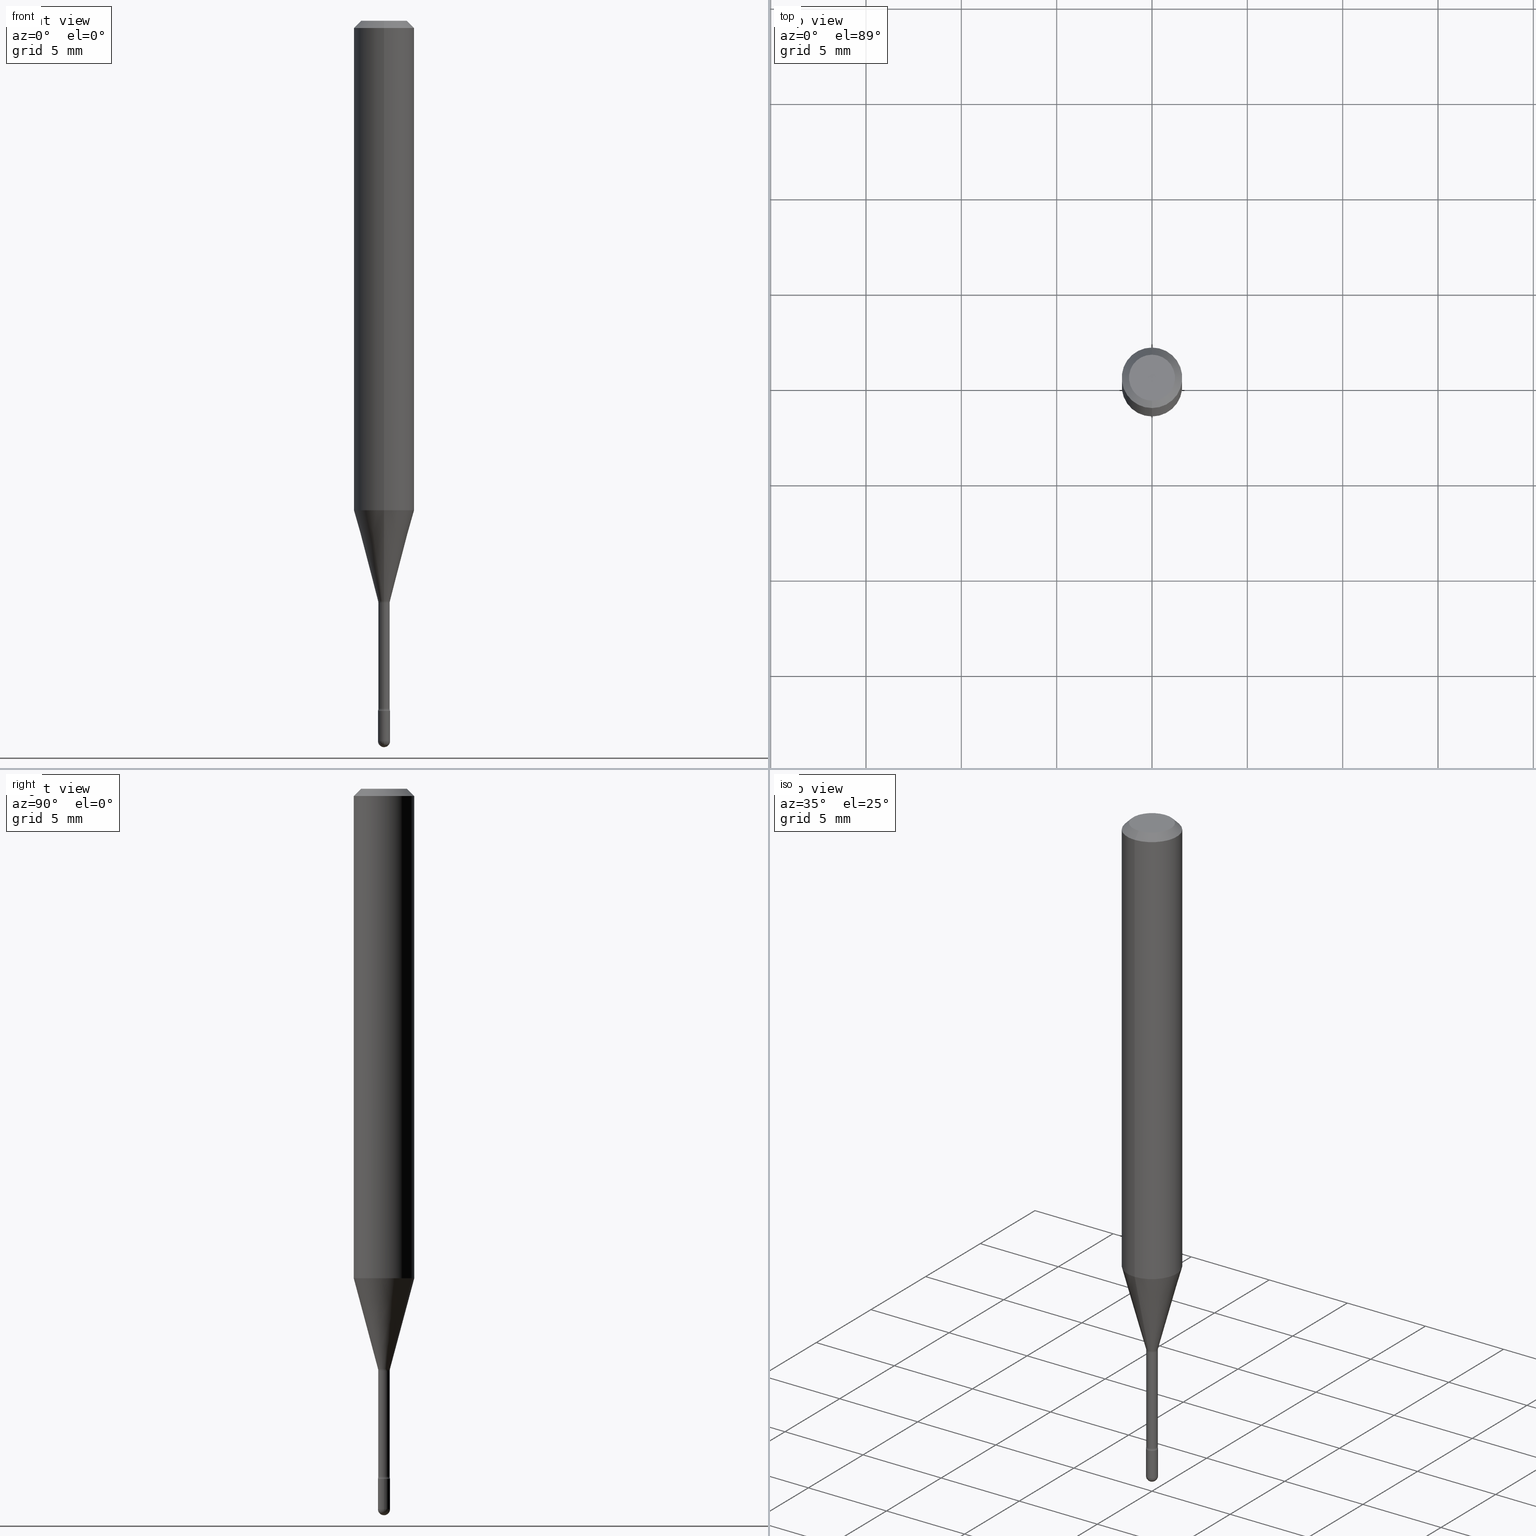
[diagram: canonical four-view strip — front | top / right | iso, engineering-drawing reading convention]
A machine part, canonical four-view strip (front | top / right | iso — engineering-drawing reading convention). The complete STEP part file that produces these views, byte-faithful:
ISO-10303-21;
HEADER;
FILE_DESCRIPTION (( 'STEP AP203' ),
    '1' );
FILE_NAME ('09790.STEP',
    '2024-04-10T01:21:23',
    ( '' ),
    ( '' ),
    'SwSTEP 2.0',
    'SolidWorks 2023',
    '' );
FILE_SCHEMA (( 'CONFIG_CONTROL_DESIGN' ));
ENDSEC;

DATA;
#1 = EDGE_CURVE ( 'NONE', #280, #69, #495, .T. ) ;
#2 = ORIENTED_EDGE ( 'NONE', *, *, #468, .T. ) ;
#3 = DIRECTION ( 'NONE',  ( -6.982962677686265133E-15, -1.000000000000000000, 0.000000000000000000 ) ) ;
#4 = ORIENTED_EDGE ( 'NONE', *, *, #428, .F. ) ;
#5 = DIRECTION ( 'NONE',  ( -1.000000000000000000, 6.982962677686265922E-15, -4.883557194083112340E-29 ) ) ;
#6 = ORIENTED_EDGE ( 'NONE', *, *, #432, .F. ) ;
#7 = DIRECTION ( 'NONE',  ( 1.000000000000000000, -6.982962677686294321E-15, 0.000000000000000000 ) ) ;
#8 = EDGE_LOOP ( 'NONE', ( #484, #2, #321, #147 ) ) ;
#9 = AXIS2_PLACEMENT_3D ( 'NONE', #17, #540, #430 ) ;
#10 = LINE ( 'NONE', #266, #161 ) ;
#11 = EDGE_CURVE ( 'NONE', #352, #272, #504, .T. ) ;
#12 = ORIENTED_EDGE ( 'NONE', *, *, #444, .F. ) ;
#13 = DIRECTION ( 'NONE',  ( -2.445561478799539239E-29, 3.491348626384723119E-15, 1.000000000000000000 ) ) ;
#14 = PERSON ( 'UNSPECIFIED', 'UNSPECIFIED', 'UNSPECIFIED', ('UNSPECIFIED'), ('UNSPECIFIED'), ('UNSPECIFIED') ) ;
#15 = ORIENTED_EDGE ( 'NONE', *, *, #27, .F. ) ;
#16 = CARTESIAN_POINT ( 'NONE',  ( 2.930008870409523343E-29, -4.182958610396833212E-15, -1.198092501787273223 ) ) ;
#17 = CARTESIAN_POINT ( 'NONE',  ( 2.939503238709759037E-29, -4.196513023160846013E-15, -1.201974787463810701 ) ) ;
#18 = AXIS2_PLACEMENT_3D ( 'NONE', #377, #548, #156 ) ;
#19 = ORIENTED_EDGE ( 'NONE', *, *, #263, .T. ) ;
#20 =( CONVERSION_BASED_UNIT ( 'INCH', #155 ) LENGTH_UNIT ( ) NAMED_UNIT ( #267 ) );
#21 = APPLICATION_PROTOCOL_DEFINITION ( 'international standard', 'config_control_design', 1994, #36 ) ;
#22 = EDGE_LOOP ( 'NONE', ( #184, #222, #389, #48, #286 ) ) ;
#23 = CIRCLE ( 'NONE', #388, 0.06250000000000000000 ) ;
#24 = CARTESIAN_POINT ( 'NONE',  ( 4.364351673553919652E-16, 0.06249999999999995143, -0.01500000000000030129 ) ) ;
#25 = PERSON_AND_ORGANIZATION ( #14, #403 ) ;
#26 = DIRECTION ( 'NONE',  ( -6.982962677686265922E-15, -1.000000000000000000, 4.370956789862821150E-15 ) ) ;
#27 = EDGE_CURVE ( 'NONE', #521, #450, #217, .T. ) ;
#28 = PERSON_AND_ORGANIZATION_ROLE ( 'creator' ) ;
#29 = CARTESIAN_POINT ( 'NONE',  ( 2.939391848563758953E-29, -4.196672540189851950E-15, -1.201974787463810923 ) ) ;
#30 = PERSON_AND_ORGANIZATION_ROLE ( 'classification_officer' ) ;
#31 = CARTESIAN_POINT ( 'NONE',  ( 3.473470712384296242E-29, -4.958819193710618417E-15, -1.420316251501201332 ) ) ;
#32 = AXIS2_PLACEMENT_3D ( 'NONE', #148, #126, #166 ) ;
#33 = PERSON_AND_ORGANIZATION ( #14, #403 ) ;
#34 = CC_DESIGN_PERSON_AND_ORGANIZATION_ASSIGNMENT ( #463, #111, ( #212 ) ) ;
#35 = FACE_OUTER_BOUND ( 'NONE', #501, .T. ) ;
#36 = APPLICATION_CONTEXT ( 'configuration controlled 3d designs of mechanical parts and assemblies' ) ;
#37 = FACE_OUTER_BOUND ( 'NONE', #529, .T. ) ;
#38 = FACE_OUTER_BOUND ( 'NONE', #178, .T. ) ;
#39 = CYLINDRICAL_SURFACE ( 'NONE', #113, 0.06250000000000000000 ) ;
#40 = ADVANCED_FACE ( 'NONE', ( #330 ), #425, .F. ) ;
#41 = ADVANCED_FACE ( 'NONE', ( #195 ), #374, .T. ) ;
#42 = AXIS2_PLACEMENT_3D ( 'NONE', #550, #157, #73 ) ;
#43 = CLOSED_SHELL ( 'NONE', ( #498, #305, #257, #201, #186, #243, #249, #472, #167, #78, #306, #40, #41, #282 ) ) ;
#44 = CIRCLE ( 'NONE', #42, 0.01500000000000002720 ) ;
#45 = ORIENTED_EDGE ( 'NONE', *, *, #428, .T. ) ;
#46 = EDGE_CURVE ( 'NONE', #272, #224, #255, .T. ) ;
#47 = CARTESIAN_POINT ( 'NONE',  ( 3.484925107289344340E-29, -4.975171792598231342E-15, -1.425000000000000266 ) ) ;
#48 = ORIENTED_EDGE ( 'NONE', *, *, #517, .F. ) ;
#49 = FACE_OUTER_BOUND ( 'NONE', #265, .T. ) ;
#50 = ORIENTED_EDGE ( 'NONE', *, *, #11, .T. ) ;
#51 = DATE_TIME_ROLE ( 'classification_date' ) ;
#52 = EDGE_CURVE ( 'NONE', #224, #272, #218, .T. ) ;
#53 = ORIENTED_EDGE ( 'NONE', *, *, #95, .T. ) ;
#54 = CARTESIAN_POINT ( 'NONE',  ( 2.656048273965141059E-16, 0.01226111260565979771, -1.198092501787273223 ) ) ;
#55 = DIRECTION ( 'NONE',  ( 2.445561478799539239E-29, -3.491348626384722725E-15, -1.000000000000000000 ) ) ;
#56 = ORIENTED_EDGE ( 'NONE', *, *, #234, .T. ) ;
#57 = CIRCLE ( 'NONE', #395, 0.01250000000000000243 ) ;
#58 = DIRECTION ( 'NONE',  ( -6.982962677686265922E-15, -1.000000000000000000, 0.000000000000000000 ) ) ;
#59 = DIRECTION ( 'NONE',  ( -2.445561478799539519E-29, 3.491348626384722725E-15, 1.000000000000000000 ) ) ;
#60 = ORIENTED_EDGE ( 'NONE', *, *, #338, .F. ) ;
#61 = FACE_OUTER_BOUND ( 'NONE', #123, .T. ) ;
#62 = DIRECTION ( 'NONE',  ( -2.445561478799539239E-29, 3.491348626384723119E-15, 1.000000000000000000 ) ) ;
#63 = CARTESIAN_POINT ( 'NONE',  ( 2.024226748635264408E-45, -2.888572993736515430E-31, -8.275333591332038235E-17 ) ) ;
#64 = ADVANCED_FACE ( 'NONE', ( #38 ), #385, .T. ) ;
#65 = CARTESIAN_POINT ( 'NONE',  ( 1.900701818158561564E-16, 0.02674999999999580144, -1.201974787463811145 ) ) ;
#66 = DIRECTION ( 'NONE',  ( 6.982962677686266711E-15, 1.000000000000000000, 0.000000000000000000 ) ) ;
#67 = CIRCLE ( 'NONE', #369, 0.01175000000000000350 ) ;
#68 = CC_DESIGN_PERSON_AND_ORGANIZATION_ASSIGNMENT ( #33, #28, ( #544 ) ) ;
#69 = VERTEX_POINT ( 'NONE', #477 ) ;
#70 = ORIENTED_EDGE ( 'NONE', *, *, #52, .F. ) ;
#71 = DATE_AND_TIME ( #470, #227 ) ;
#72 = DIRECTION ( 'NONE',  ( -6.982962677686265133E-15, -1.000000000000000000, 3.491348626384723513E-15 ) ) ;
#73 = DIRECTION ( 'NONE',  ( 7.105427357601001859E-15, 1.000000000000000000, 0.000000000000000000 ) ) ;
#74 = CC_DESIGN_APPROVAL ( #79, ( #407 ) ) ;
#75 = AXIS2_PLACEMENT_3D ( 'NONE', #346, #55, #547 ) ;
#76 = COORDINATED_UNIVERSAL_TIME_OFFSET ( 5, 0, .BEHIND. ) ;
#77 = LINE ( 'NONE', #214, #467 ) ;
#78 = ADVANCED_FACE ( 'NONE', ( #108 ), #164, .F. ) ;
#79 = APPROVAL ( #169, 'UNSPECIFIED' ) ;
#80 = APPROVAL_ROLE ( '' ) ;
#81 = CARTESIAN_POINT ( 'NONE',  ( -4.364351673553912750E-16, -0.06250000000000005551, -0.01499999999999986587 ) ) ;
#82 = AXIS2_PLACEMENT_3D ( 'NONE', #333, #541, #202 ) ;
#83 = AXIS2_PLACEMENT_3D ( 'NONE', #348, #162, #558 ) ;
#84 = APPROVAL_DATE_TIME ( #485, #79 ) ;
#85 = ORIENTED_EDGE ( 'NONE', *, *, #349, .T. ) ;
#86 = DIRECTION ( 'NONE',  ( -6.982962677686265922E-15, -1.000000000000000000, 3.491348626384722725E-15 ) ) ;
#87 = EDGE_LOOP ( 'NONE', ( #92, #219, #452, #268 ) ) ;
#88 = AXIS2_PLACEMENT_3D ( 'NONE', #446, #5, #356 ) ;
#89 = CC_DESIGN_APPROVAL ( #318, ( #544 ) ) ;
#90 = VERTEX_POINT ( 'NONE', #372 ) ;
#91 = ORIENTED_EDGE ( 'NONE', *, *, #401, .T. ) ;
#92 = ORIENTED_EDGE ( 'NONE', *, *, #401, .F. ) ;
#93 = DIRECTION ( 'NONE',  ( -2.445561478799539239E-29, 3.491348626384723119E-15, 1.000000000000000000 ) ) ;
#94 = EDGE_LOOP ( 'NONE', ( #142, #436 ) ) ;
#95 = EDGE_CURVE ( 'NONE', #312, #90, #23, .T. ) ;
#96 = ORIENTED_EDGE ( 'NONE', *, *, #191, .F. ) ;
#97 = CARTESIAN_POINT ( 'NONE',  ( -4.364351673553670668E-16, -0.06250000000000353884, -1.010598421515879641 ) ) ;
#98 = ORIENTED_EDGE ( 'NONE', *, *, #349, .F. ) ;
#99 = AXIS2_PLACEMENT_3D ( 'NONE', #490, #176, #138 ) ;
#100 = CARTESIAN_POINT ( 'NONE',  ( 3.637634849200391024E-29, -5.193578491529179010E-15, -1.487500000000000266 ) ) ;
#101 = DIRECTION ( 'NONE',  ( 1.000000000000000000, -6.982962677686292743E-15, 0.000000000000000000 ) ) ;
#102 = VERTEX_POINT ( 'NONE', #204 ) ;
#103 = DIRECTION ( 'NONE',  ( 1.000000000000000000, -6.982962677686265922E-15, 4.883557194083112340E-29 ) ) ;
#104 = CIRCLE ( 'NONE', #82, 0.01250000000000000069 ) ;
#105 = ORIENTED_EDGE ( 'NONE', *, *, #517, .T. ) ;
#106 = TOROIDAL_SURFACE ( 'NONE', #545, 0.02675000000000002723, 0.01500000000000002547 ) ;
#107 = EDGE_CURVE ( 'NONE', #260, #197, #143, .T. ) ;
#108 = FACE_OUTER_BOUND ( 'NONE', #94, .T. ) ;
#109 = DATE_AND_TIME ( #287, #254 ) ;
#110 = CARTESIAN_POINT ( 'NONE',  ( -1.169113584055446105E-44, 1.669184350826100908E-30, 4.780733988912460139E-16 ) ) ;
#111 = PERSON_AND_ORGANIZATION_ROLE ( 'creator' ) ;
#112 = VECTOR ( 'NONE', #59, 39.37007874015748143 ) ;
#113 = AXIS2_PLACEMENT_3D ( 'NONE', #213, #344, #514 ) ;
#114 = APPROVAL_PERSON_ORGANIZATION ( #248, #318, #80 ) ;
#115 = MECHANICAL_CONTEXT ( 'NONE', #36, 'mechanical' ) ;
#116 = DIRECTION ( 'NONE',  ( -2.445468806185136597E-29, 3.491481338843145583E-15, 1.000000000000000000 ) ) ;
#117 = CARTESIAN_POINT ( 'NONE',  ( 3.668342218199329335E-31, -5.237022939577113570E-17, -0.01500000000000008271 ) ) ;
#118 = APPROVAL_ROLE ( '' ) ;
#119 = AXIS2_PLACEMENT_3D ( 'NONE', #506, #288, #72 ) ;
#120 = CARTESIAN_POINT ( 'NONE',  ( 8.615330671094703254E-17, 0.01174999999999504566, -1.420316251501201332 ) ) ;
#121 = LINE ( 'NONE', #165, #295 ) ;
#122 = EDGE_CURVE ( 'NONE', #488, #224, #77, .T. ) ;
#123 = EDGE_LOOP ( 'NONE', ( #525, #226, #278, #270 ) ) ;
#124 = DIRECTION ( 'NONE',  ( -2.445561478799539239E-29, 3.491348626384723119E-15, 1.000000000000000000 ) ) ;
#125 = PERSON_AND_ORGANIZATION ( #14, #403 ) ;
#126 = DIRECTION ( 'NONE',  ( -1.000000000000000000, 6.982962677686265922E-15, -4.883557194083112340E-29 ) ) ;
#127 = DIRECTION ( 'NONE',  ( -2.445561478799539239E-29, 3.491348626384723119E-15, 1.000000000000000000 ) ) ;
#128 = EDGE_LOOP ( 'NONE', ( #357, #480, #364, #390 ) ) ;
#129 = AXIS2_PLACEMENT_3D ( 'NONE', #329, #440, #236 ) ;
#130 = COORDINATED_UNIVERSAL_TIME_OFFSET ( 5, 0, .BEHIND. ) ;
#131 = CONICAL_SURFACE ( 'NONE', #405, 0.01226111260566397840, 0.2617993877991499629 ) ;
#132 = EDGE_LOOP ( 'NONE', ( #355, #497 ) ) ;
#133 = FACE_OUTER_BOUND ( 'NONE', #87, .T. ) ;
#134 = VERTEX_POINT ( 'NONE', #253 ) ;
#135 = DIRECTION ( 'NONE',  ( -2.445561478799539239E-29, 3.491348626384723119E-15, 1.000000000000000000 ) ) ;
#136 = DIRECTION ( 'NONE',  ( -2.445468806185136597E-29, 3.491481338843145583E-15, 1.000000000000000000 ) ) ;
#137 = ORIENTED_EDGE ( 'NONE', *, *, #107, .F. ) ;
#138 = DIRECTION ( 'NONE',  ( -6.982962677686265922E-15, -1.000000000000000000, 3.483106191921935554E-15 ) ) ;
#139 = AXIS2_PLACEMENT_3D ( 'NONE', #140, #136, #7 ) ;
#140 = CARTESIAN_POINT ( 'NONE',  ( 3.484793048813820547E-29, -4.975360907851483175E-15, -1.425000000000000266 ) ) ;
#141 = EDGE_CURVE ( 'NONE', #488, #352, #67, .T. ) ;
#142 = ORIENTED_EDGE ( 'NONE', *, *, #522, .T. ) ;
#143 = CIRCLE ( 'NONE', #460, 0.06250000000000000000 ) ;
#144 = EDGE_LOOP ( 'NONE', ( #486, #358, #519, #98 ) ) ;
#145 = CARTESIAN_POINT ( 'NONE',  ( 0.01250000000000000243, -8.728703347107835853E-17, 6.095220969744921493E-31 ) ) ;
#146 = CARTESIAN_POINT ( 'NONE',  ( 0.01250000000000000243, -5.171756733161409821E-15, -1.487499999999999822 ) ) ;
#147 = ORIENTED_EDGE ( 'NONE', *, *, #46, .F. ) ;
#148 = CARTESIAN_POINT ( 'NONE',  ( -1.867942516280782268E-16, -0.02675000000000419403, -1.201974787463810701 ) ) ;
#149 = DIRECTION ( 'NONE',  ( 6.982962677686265922E-15, 1.000000000000000000, 0.000000000000000000 ) ) ;
#150 = ADVANCED_FACE ( 'NONE', ( #383 ), #303, .T. ) ;
#151 = AXIS2_PLACEMENT_3D ( 'NONE', #245, #203, #508 ) ;
#152 = EDGE_LOOP ( 'NONE', ( #396, #50, #70, #537 ) ) ;
#153 = VECTOR ( 'NONE', #309, 39.37007874015748143 ) ;
#154 = CARTESIAN_POINT ( 'NONE',  ( 3.637634849200391024E-29, -5.193578491529179010E-15, -1.487500000000000266 ) ) ;
#155 = LENGTH_MEASURE_WITH_UNIT ( LENGTH_MEASURE( 0.02539999999999999897 ), #502 );
#156 = DIRECTION ( 'NONE',  ( -6.982962677686265922E-15, -1.000000000000000000, 0.000000000000000000 ) ) ;
#157 = DIRECTION ( 'NONE',  ( 1.000000000000000000, -7.105427357601001070E-15, 4.926313883283208026E-29 ) ) ;
#158 = CARTESIAN_POINT ( 'NONE',  ( 3.637634849200390463E-29, -5.193578491529179010E-15, -1.487499999999999822 ) ) ;
#159 = EDGE_CURVE ( 'NONE', #310, #102, #449, .T. ) ;
#160 = AXIS2_PLACEMENT_3D ( 'NONE', #100, #277, #66 ) ;
#161 = VECTOR ( 'NONE', #269, 39.37007874015748143 ) ;
#162 = DIRECTION ( 'NONE',  ( 2.445561478799539239E-29, -3.491348626384723119E-15, -1.000000000000000000 ) ) ;
#163 = LOCAL_TIME ( 21, 21, 23.00000000000000000, #130 ) ;
#164 = PLANE ( 'NONE',  #75 ) ;
#165 = CARTESIAN_POINT ( 'NONE',  ( -8.561889171223086706E-17, -0.01226111260566816255, -1.198092501787273223 ) ) ;
#166 = DIRECTION ( 'NONE',  ( -6.982962677686262766E-15, -1.000000000000000000, 0.000000000000000000 ) ) ;
#167 = ADVANCED_FACE ( 'NONE', ( #37 ), #538, .T. ) ;
#168 = AXIS2_PLACEMENT_3D ( 'NONE', #533, #135, #320 ) ;
#169 = APPROVAL_STATUS ( 'not_yet_approved' ) ;
#170 = ORIENTED_EDGE ( 'NONE', *, *, #560, .F. ) ;
#171 = SPHERICAL_SURFACE ( 'NONE', #193, 0.01249999999999996947 ) ;
#172 = DESIGN_CONTEXT ( 'detailed design', #534, 'design' ) ;
#173 = SHAPE_DEFINITION_REPRESENTATION ( #314, #500 ) ;
#174 = DIRECTION ( 'NONE',  ( -2.445561478799539239E-29, 3.491348626384723119E-15, 1.000000000000000000 ) ) ;
#175 = ORIENTED_EDGE ( 'NONE', *, *, #453, .T. ) ;
#176 = DIRECTION ( 'NONE',  ( -2.445561478799539239E-29, 3.491348626384723119E-15, 1.000000000000000000 ) ) ;
#177 = DIRECTION ( 'NONE',  ( -2.445561478799539239E-29, 3.491348626384723119E-15, 1.000000000000000000 ) ) ;
#178 = EDGE_LOOP ( 'NONE', ( #240, #445, #362, #105, #170 ) ) ;
#179 = EDGE_CURVE ( 'NONE', #102, #312, #121, .T. ) ;
#180 = CARTESIAN_POINT ( 'NONE',  ( 8.348877145184653122E-17, 0.01174999999999580547, -1.201974787463810701 ) ) ;
#181 = AXIS2_PLACEMENT_3D ( 'NONE', #232, #496, #101 ) ;
#182 = AXIS2_PLACEMENT_3D ( 'NONE', #154, #103, #149 ) ;
#183 = CARTESIAN_POINT ( 'NONE',  ( 4.440892098500625669E-16, 0.06250000000000000000, 2.598641097422008436E-16 ) ) ;
#184 = ORIENTED_EDGE ( 'NONE', *, *, #543, .T. ) ;
#185 = FACE_OUTER_BOUND ( 'NONE', #367, .T. ) ;
#186 = ADVANCED_FACE ( 'NONE', ( #35 ), #39, .T. ) ;
#187 = DIRECTION ( 'NONE',  ( -2.445561478799539239E-29, 3.491348626384723119E-15, 1.000000000000000000 ) ) ;
#188 = DIRECTION ( 'NONE',  ( -6.982962677686265922E-15, -1.000000000000000000, 0.000000000000000000 ) ) ;
#189 = CARTESIAN_POINT ( 'NONE',  ( -4.287811248607203282E-16, -0.06250000000000005551, -0.01499999999999986587 ) ) ;
#190 = AXIS2_PLACEMENT_3D ( 'NONE', #110, #466, #551 ) ;
#191 = EDGE_CURVE ( 'NONE', #69, #376, #57, .T. ) ;
#192 = MANIFOLD_SOLID_BREP ( 'Body-Move/Copy2[2]', #43 ) ;
#193 = AXIS2_PLACEMENT_3D ( 'NONE', #394, #273, #451 ) ;
#194 = FACE_OUTER_BOUND ( 'NONE', #22, .T. ) ;
#195 = FACE_OUTER_BOUND ( 'NONE', #8, .T. ) ;
#196 = CIRCLE ( 'NONE', #139, 0.01250000000000000069 ) ;
#197 = VERTEX_POINT ( 'NONE', #81 ) ;
#198 = CARTESIAN_POINT ( 'NONE',  ( 3.637634849200390463E-29, -5.193578491529179010E-15, -1.487499999999999822 ) ) ;
#199 = CARTESIAN_POINT ( 'NONE',  ( -3.773273898774340269E-16, -0.04749999999999999362, 8.308572383995396038E-17 ) ) ;
#200 = VERTEX_POINT ( 'NONE', #513 ) ;
#201 = ADVANCED_FACE ( 'NONE', ( #256 ), #518, .T. ) ;
#202 = DIRECTION ( 'NONE',  ( 1.000000000000000000, -6.982962677686294321E-15, 0.000000000000000000 ) ) ;
#203 = DIRECTION ( 'NONE',  ( 0.000000000000000000, 0.000000000000000000, 1.000000000000000000 ) ) ;
#204 = CARTESIAN_POINT ( 'NONE',  ( -8.561889171223086706E-17, -0.01226111260566816255, -1.198092501787273223 ) ) ;
#205 = DIRECTION ( 'NONE',  ( -2.445468806185136597E-29, 3.491481338843145583E-15, 1.000000000000000000 ) ) ;
#206 = ADVANCED_FACE ( 'NONE', ( #345 ), #171, .T. ) ;
#207 = PERSON_AND_ORGANIZATION ( #14, #403 ) ;
#208 = DIRECTION ( 'NONE',  ( -2.445561478799539239E-29, 3.491348626384723119E-15, 1.000000000000000000 ) ) ;
#209 = DIRECTION ( 'NONE',  ( -6.982962677686265922E-15, -1.000000000000000000, 0.000000000000000000 ) ) ;
#210 = CC_DESIGN_PERSON_AND_ORGANIZATION_ASSIGNMENT ( #422, #30, ( #407 ) ) ;
#211 = AXIS2_PLACEMENT_3D ( 'NONE', #238, #228, #323 ) ;
#212 = PRODUCT_DEFINITION ( 'UNKNOWN', '', #544, #172 ) ;
#213 = CARTESIAN_POINT ( 'NONE',  ( -1.169113584055446105E-44, 1.669184350826100908E-30, 4.780733988912460139E-16 ) ) ;
#214 = CARTESIAN_POINT ( 'NONE',  ( -8.204981146281365061E-17, -0.01175000000000000350, 5.190967452512665836E-16 ) ) ;
#215 = TOROIDAL_SURFACE ( 'NONE', #261, 0.02674999999999999947, 0.01499999999999998904 ) ;
#216 = CARTESIAN_POINT ( 'NONE',  ( 2.930008870409523343E-29, -4.182958610396833212E-15, -1.198092501787273223 ) ) ;
#217 = CIRCLE ( 'NONE', #182, 0.01249999999999996947 ) ;
#218 = CIRCLE ( 'NONE', #9, 0.01175000000000000350 ) ;
#219 = ORIENTED_EDGE ( 'NONE', *, *, #159, .T. ) ;
#220 = CYLINDRICAL_SURFACE ( 'NONE', #438, 0.01175000000000000350 ) ;
#221 = EDGE_CURVE ( 'NONE', #488, #315, #285, .T. ) ;
#222 = ORIENTED_EDGE ( 'NONE', *, *, #275, .T. ) ;
#223 = FACE_OUTER_BOUND ( 'NONE', #152, .T. ) ;
#224 = VERTEX_POINT ( 'NONE', #391 ) ;
#225 = LINE ( 'NONE', #189, #381 ) ;
#226 = ORIENTED_EDGE ( 'NONE', *, *, #553, .T. ) ;
#227 = LOCAL_TIME ( 21, 21, 23.00000000000000000, #76 ) ;
#228 = DIRECTION ( 'NONE',  ( -1.000000000000000000, 7.105427357601001070E-15, -4.926315508542082329E-29 ) ) ;
#229 = CONICAL_SURFACE ( 'NONE', #511, 0.01226111260566397840, 0.2617993877991499629 ) ;
#230 = ORIENTED_EDGE ( 'NONE', *, *, #338, .T. ) ;
#231 = DIRECTION ( 'NONE',  ( -6.982962677686265922E-15, -1.000000000000000000, 3.491348626384723119E-15 ) ) ;
#232 = CARTESIAN_POINT ( 'NONE',  ( 3.637634849200390463E-29, -5.193578491529179010E-15, -1.487499999999999822 ) ) ;
#233 = CARTESIAN_POINT ( 'NONE',  ( 8.728703347111317935E-17, 0.01249999999999502551, -1.425000000000000266 ) ) ;
#234 = EDGE_CURVE ( 'NONE', #90, #260, #523, .T. ) ;
#235 = DIRECTION ( 'NONE',  ( -2.445468806185136597E-29, 3.491481338843145583E-15, 1.000000000000000000 ) ) ;
#236 = DIRECTION ( 'NONE',  ( 1.000000000000000000, -6.982962677686267499E-15, 4.876176775795936353E-29 ) ) ;
#237 = CIRCLE ( 'NONE', #293, 0.04749999999999999362 ) ;
#238 = CARTESIAN_POINT ( 'NONE',  ( 3.637634849200391024E-29, -5.193578491529179010E-15, -1.487500000000000266 ) ) ;
#239 = AXIS2_PLACEMENT_3D ( 'NONE', #316, #307, #530 ) ;
#240 = ORIENTED_EDGE ( 'NONE', *, *, #275, .F. ) ;
#241 = LOCAL_TIME ( 21, 21, 23.00000000000000000, #311 ) ;
#242 = CARTESIAN_POINT ( 'NONE',  ( 8.728703347111462148E-17, 0.01249999999999479305, -1.487499999999999822 ) ) ;
#243 = ADVANCED_FACE ( 'NONE', ( #353 ), #229, .T. ) ;
#244 = ORIENTED_EDGE ( 'NONE', *, *, #515, .T. ) ;
#245 = CARTESIAN_POINT ( 'NONE',  ( 0.000000000000000000, 0.000000000000000000, 0.000000000000000000 ) ) ;
#246 = DIRECTION ( 'NONE',  ( -2.445561478799539239E-29, 3.491348626384723119E-15, 1.000000000000000000 ) ) ;
#247 =( NAMED_UNIT ( * ) SI_UNIT ( $, .STERADIAN. ) SOLID_ANGLE_UNIT ( ) );
#248 = PERSON_AND_ORGANIZATION ( #14, #403 ) ;
#249 = ADVANCED_FACE ( 'NONE', ( #133 ), #131, .T. ) ;
#250 = CARTESIAN_POINT ( 'NONE',  ( 0.01250000000000000069, -5.062647941322562298E-15, -1.425000000000000266 ) ) ;
#251 = APPLICATION_PROTOCOL_DEFINITION ( 'international standard', 'config_control_design', 1994, #534 ) ;
#252 = DATE_TIME_ROLE ( 'creation_date' ) ;
#253 = CARTESIAN_POINT ( 'NONE',  ( 3.840629472727447874E-16, 0.04749999999999999362, -2.485923956665947374E-16 ) ) ;
#254 = LOCAL_TIME ( 21, 21, 23.00000000000000000, #552 ) ;
#255 = CIRCLE ( 'NONE', #324, 0.01175000000000000350 ) ;
#256 = FACE_OUTER_BOUND ( 'NONE', #494, .T. ) ;
#257 = ADVANCED_FACE ( 'NONE', ( #61 ), #106, .F. ) ;
#258 = CC_DESIGN_DATE_AND_TIME_ASSIGNMENT ( #71, #252, ( #212 ) ) ;
#259 = DIRECTION ( 'NONE',  ( -2.445561478799539239E-29, 3.491348626384723119E-15, 1.000000000000000000 ) ) ;
#260 = VERTEX_POINT ( 'NONE', #313 ) ;
#261 = AXIS2_PLACEMENT_3D ( 'NONE', #29, #208, #379 ) ;
#262 = CARTESIAN_POINT ( 'NONE',  ( -8.728703347104359935E-17, -0.01250000000000499323, -1.425000000000000266 ) ) ;
#263 = EDGE_CURVE ( 'NONE', #197, #260, #347, .T. ) ;
#264 = LOCAL_TIME ( 21, 21, 23.00000000000000000, #337 ) ;
#265 = EDGE_LOOP ( 'NONE', ( #12, #441, #85, #532 ) ) ;
#266 = CARTESIAN_POINT ( 'NONE',  ( -0.01250000000000000243, 8.881784197001254049E-17, -6.148668862818633278E-31 ) ) ;
#267 = DIMENSIONAL_EXPONENTS ( 1.000000000000000000, 0.000000000000000000, 0.000000000000000000, 0.000000000000000000, 0.000000000000000000, 0.000000000000000000, 0.000000000000000000 ) ;
#268 = ORIENTED_EDGE ( 'NONE', *, *, #400, .F. ) ;
#269 = DIRECTION ( 'NONE',  ( -2.445468806185136877E-29, 3.491481338843145188E-15, 1.000000000000000000 ) ) ;
#270 = ORIENTED_EDGE ( 'NONE', *, *, #221, .F. ) ;
#271 = EDGE_CURVE ( 'NONE', #458, #134, #415, .T. ) ;
#272 = VERTEX_POINT ( 'NONE', #180 ) ;
#273 = DIRECTION ( 'NONE',  ( -1.000000000000000000, 6.982962677686266711E-15, -4.883557194083112901E-29 ) ) ;
#274 = ORIENTED_EDGE ( 'NONE', *, *, #234, .F. ) ;
#275 = EDGE_CURVE ( 'NONE', #280, #527, #10, .T. ) ;
#276 = PRODUCT_RELATED_PRODUCT_CATEGORY ( 'detail', '', ( #279 ) ) ;
#277 = DIRECTION ( 'NONE',  ( -1.000000000000000000, 6.982962677686266711E-15, -4.883557194083112901E-29 ) ) ;
#278 = ORIENTED_EDGE ( 'NONE', *, *, #535, .T. ) ;
#279 = PRODUCT ( '09790', '09790', '', ( #115 ) ) ;
#280 = VERTEX_POINT ( 'NONE', #397 ) ;
#281 = EDGE_LOOP ( 'NONE', ( #274, #443, #45, #137 ) ) ;
#282 = ADVANCED_FACE ( 'NONE', ( #49 ), #481, .F. ) ;
#283 = CC_DESIGN_PERSON_AND_ORGANIZATION_ASSIGNMENT ( #207, #297, ( #544 ) ) ;
#284 = AXIS2_PLACEMENT_3D ( 'NONE', #233, #487, #86 ) ;
#285 = CIRCLE ( 'NONE', #88, 0.01500000000000002720 ) ;
#286 = ORIENTED_EDGE ( 'NONE', *, *, #432, .T. ) ;
#287 = CALENDAR_DATE ( 2024, 9, 4 ) ;
#288 = DIRECTION ( 'NONE',  ( -2.445561478799539239E-29, 3.491348626384723119E-15, 1.000000000000000000 ) ) ;
#289 =( NAMED_UNIT ( * ) PLANE_ANGLE_UNIT ( ) SI_UNIT ( $, .RADIAN. ) );
#290 = APPROVAL_DATE_TIME ( #109, #474 ) ;
#291 = ORIENTED_EDGE ( 'NONE', *, *, #263, .F. ) ;
#292 = CARTESIAN_POINT ( 'NONE',  ( 2.471480570194855478E-29, -3.528351410786036759E-15, -1.010598421515879863 ) ) ;
#293 = AXIS2_PLACEMENT_3D ( 'NONE', #63, #259, #404 ) ;
#294 = DATE_AND_TIME ( #424, #264 ) ;
#295 = VECTOR ( 'NONE', #433, 39.37007874015748143 ) ;
#296 = CIRCLE ( 'NONE', #301, 0.01250000000000000069 ) ;
#297 = PERSON_AND_ORGANIZATION_ROLE ( 'design_supplier' ) ;
#298 = PERSON_AND_ORGANIZATION ( #14, #403 ) ;
#299 = DIRECTION ( 'NONE',  ( 1.000000000000000000, -6.982962677686292743E-15, 0.000000000000000000 ) ) ;
#300 = EDGE_CURVE ( 'NONE', #315, #200, #555, .T. ) ;
#301 = AXIS2_PLACEMENT_3D ( 'NONE', #351, #174, #354 ) ;
#302 = CLOSED_SHELL ( 'NONE', ( #509, #327, #150, #206, #64 ) ) ;
#303 = PLANE ( 'NONE',  #332 ) ;
#304 = EDGE_LOOP ( 'NONE', ( #542, #371 ) ) ;
#305 = ADVANCED_FACE ( 'NONE', ( #223 ), #220, .T. ) ;
#306 = ADVANCED_FACE ( 'NONE', ( #476 ), #526, .F. ) ;
#307 = DIRECTION ( 'NONE',  ( -2.445561478799539239E-29, 3.491348626384723119E-15, 1.000000000000000000 ) ) ;
#308 = CIRCLE ( 'NONE', #322, 0.06250000000000000000 ) ;
#309 = DIRECTION ( 'NONE',  ( -2.445561478799539519E-29, 3.491348626384722725E-15, 1.000000000000000000 ) ) ;
#310 = VERTEX_POINT ( 'NONE', #54 ) ;
#311 = COORDINATED_UNIVERSAL_TIME_OFFSET ( 5, 0, .BEHIND. ) ;
#312 = VERTEX_POINT ( 'NONE', #97 ) ;
#313 = CARTESIAN_POINT ( 'NONE',  ( 4.440892098500874653E-16, 0.06249999999999993755, -0.01500000000000030129 ) ) ;
#314 = PRODUCT_DEFINITION_SHAPE ( 'NONE', 'NONE',  #212 ) ;
#315 = VERTEX_POINT ( 'NONE', #262 ) ;
#316 = CARTESIAN_POINT ( 'NONE',  ( 2.939391848563758953E-29, -4.196672540189851950E-15, -1.201974787463810923 ) ) ;
#317 = LINE ( 'NONE', #491, #112 ) ;
#318 = APPROVAL ( #549, 'UNSPECIFIED' ) ;
#319 = EDGE_LOOP ( 'NONE', ( #392, #464, #6, #96 ) ) ;
#320 = DIRECTION ( 'NONE',  ( -6.982962677686266711E-15, -1.000000000000000000, 3.491348626384723119E-15 ) ) ;
#321 = ORIENTED_EDGE ( 'NONE', *, *, #122, .T. ) ;
#322 = AXIS2_PLACEMENT_3D ( 'NONE', #499, #187, #528 ) ;
#323 = DIRECTION ( 'NONE',  ( -7.105427357601001070E-15, -1.000000000000000000, 0.000000000000000000 ) ) ;
#324 = AXIS2_PLACEMENT_3D ( 'NONE', #335, #62, #188 ) ;
#325 = ORIENTED_EDGE ( 'NONE', *, *, #95, .F. ) ;
#326 = DIRECTION ( 'NONE',  ( -4.851104656540964275E-15, -0.7071067811865500152, -0.7071067811865450192 ) ) ;
#327 = ADVANCED_FACE ( 'NONE', ( #185 ), #493, .T. ) ;
#328 = CARTESIAN_POINT ( 'NONE',  ( 3.668342218199329335E-31, -5.237022939577113570E-17, -0.01500000000000008271 ) ) ;
#329 = CARTESIAN_POINT ( 'NONE',  ( 0.000000000000000000, 0.000000000000000000, 0.000000000000000000 ) ) ;
#330 = FACE_OUTER_BOUND ( 'NONE', #128, .T. ) ;
#331 = CIRCLE ( 'NONE', #479, 0.01226111260566397840 ) ;
#332 = AXIS2_PLACEMENT_3D ( 'NONE', #380, #426, #561 ) ;
#333 = CARTESIAN_POINT ( 'NONE',  ( 3.484793048813820547E-29, -4.975360907851483175E-15, -1.425000000000000266 ) ) ;
#334 = PERSON_AND_ORGANIZATION_ROLE ( 'design_owner' ) ;
#335 = CARTESIAN_POINT ( 'NONE',  ( 2.939503238709759037E-29, -4.196513023160846013E-15, -1.201974787463810701 ) ) ;
#336 = FACE_OUTER_BOUND ( 'NONE', #281, .T. ) ;
#337 = COORDINATED_UNIVERSAL_TIME_OFFSET ( 5, 0, .BEHIND. ) ;
#338 = EDGE_CURVE ( 'NONE', #458, #197, #225, .T. ) ;
#339 = DIRECTION ( 'NONE',  ( 2.445561478799539239E-29, -3.491348626384723119E-15, -1.000000000000000000 ) ) ;
#340 = AXIS2_PLACEMENT_3D ( 'NONE', #563, #116, #434 ) ;
#341 = CIRCLE ( 'NONE', #512, 0.01499999999999998557 ) ;
#342 = DIRECTION ( 'NONE',  ( -2.445468806185136597E-29, 3.491481338843145583E-15, 1.000000000000000000 ) ) ;
#343 = CC_DESIGN_DATE_AND_TIME_ASSIGNMENT ( #350, #51, ( #407 ) ) ;
#344 = DIRECTION ( 'NONE',  ( -2.445561478799539239E-29, 3.491348626384723119E-15, 1.000000000000000000 ) ) ;
#345 = FACE_OUTER_BOUND ( 'NONE', #319, .T. ) ;
#346 = CARTESIAN_POINT ( 'NONE',  ( 3.316907271900976096E-16, 0.04749999999999999362, 3.182097173568844225E-17 ) ) ;
#347 = CIRCLE ( 'NONE', #99, 0.06250000000000000000 ) ;
#348 = CARTESIAN_POINT ( 'NONE',  ( 3.668342218199329335E-31, -5.237022939577113570E-17, -0.01500000000000008271 ) ) ;
#349 = EDGE_CURVE ( 'NONE', #102, #224, #503, .T. ) ;
#350 = DATE_AND_TIME ( #564, #163 ) ;
#351 = CARTESIAN_POINT ( 'NONE',  ( 3.484925107289344340E-29, -4.975171792598231342E-15, -1.425000000000000266 ) ) ;
#352 = VERTEX_POINT ( 'NONE', #120 ) ;
#353 = FACE_OUTER_BOUND ( 'NONE', #461, .T. ) ;
#354 = DIRECTION ( 'NONE',  ( -6.982962677686265133E-15, -1.000000000000000000, 0.000000000000000000 ) ) ;
#355 = ORIENTED_EDGE ( 'NONE', *, *, #300, .F. ) ;
#356 = DIRECTION ( 'NONE',  ( -6.982962677686265133E-15, -1.000000000000000000, 0.000000000000000000 ) ) ;
#357 = ORIENTED_EDGE ( 'NONE', *, *, #553, .F. ) ;
#358 = ORIENTED_EDGE ( 'NONE', *, *, #444, .T. ) ;
#359 = AXIS2_PLACEMENT_3D ( 'NONE', #198, #205, #299 ) ;
#360 = CARTESIAN_POINT ( 'NONE',  ( -1.169113584055446105E-44, 1.669184350826100908E-30, 4.780733988912460139E-16 ) ) ;
#361 = AXIS2_PLACEMENT_3D ( 'NONE', #398, #235, #455 ) ;
#362 = ORIENTED_EDGE ( 'NONE', *, *, #191, .T. ) ;
#363 = DIRECTION ( 'NONE',  ( -6.982962677686265922E-15, -1.000000000000000000, 0.000000000000000000 ) ) ;
#364 = ORIENTED_EDGE ( 'NONE', *, *, #221, .T. ) ;
#365 = LINE ( 'NONE', #457, #370 ) ;
#366 = CARTESIAN_POINT ( 'NONE',  ( -8.204981146277892841E-17, -0.01175000000000496134, -1.420316251501201332 ) ) ;
#367 = EDGE_LOOP ( 'NONE', ( #15, #408, #492, #447 ) ) ;
#368 =( GEOMETRIC_REPRESENTATION_CONTEXT ( 3 ) GLOBAL_UNCERTAINTY_ASSIGNED_CONTEXT ( ( #418 ) ) GLOBAL_UNIT_ASSIGNED_CONTEXT ( ( #20, #289, #247 ) ) REPRESENTATION_CONTEXT ( 'NONE', 'WORKASPACE' ) );
#369 = AXIS2_PLACEMENT_3D ( 'NONE', #31, #429, #420 ) ;
#370 = VECTOR ( 'NONE', #531, 39.37007874015748854 ) ;
#371 = ORIENTED_EDGE ( 'NONE', *, *, #560, .T. ) ;
#372 = CARTESIAN_POINT ( 'NONE',  ( 4.440892098500871695E-16, 0.06249999999999647504, -1.010598421515880085 ) ) ;
#373 = DIRECTION ( 'NONE',  ( -2.445561478799539519E-29, 3.491348626384722725E-15, 1.000000000000000000 ) ) ;
#374 = CYLINDRICAL_SURFACE ( 'NONE', #382, 0.01175000000000000350 ) ;
#375 = VECTOR ( 'NONE', #373, 39.37007874015748143 ) ;
#376 = VERTEX_POINT ( 'NONE', #146 ) ;
#377 = CARTESIAN_POINT ( 'NONE',  ( 3.473470712384296242E-29, -4.958819193710618417E-15, -1.420316251501201332 ) ) ;
#378 = DIRECTION ( 'NONE',  ( -2.445561478799539239E-29, 3.491348626384723119E-15, 1.000000000000000000 ) ) ;
#379 = DIRECTION ( 'NONE',  ( -6.982962677686266711E-15, -1.000000000000000000, 3.491348626384723513E-15 ) ) ;
#380 = CARTESIAN_POINT ( 'NONE',  ( 3.484793048813820547E-29, -4.975360907851483175E-15, -1.425000000000000266 ) ) ;
#381 = VECTOR ( 'NONE', #326, 39.37007874015748143 ) ;
#382 = AXIS2_PLACEMENT_3D ( 'NONE', #462, #246, #413 ) ;
#383 = FACE_OUTER_BOUND ( 'NONE', #304, .T. ) ;
#384 = DIRECTION ( 'NONE',  ( 6.982962677686265922E-15, 1.000000000000000000, -3.483106191921935554E-15 ) ) ;
#385 = CYLINDRICAL_SURFACE ( 'NONE', #340, 0.01250000000000000243 ) ;
#386 = DIRECTION ( 'NONE',  ( -2.445468806185136877E-29, 3.491481338843145188E-15, 1.000000000000000000 ) ) ;
#387 = CIRCLE ( 'NONE', #18, 0.01175000000000000350 ) ;
#388 = AXIS2_PLACEMENT_3D ( 'NONE', #292, #416, #26 ) ;
#389 = ORIENTED_EDGE ( 'NONE', *, *, #414, .F. ) ;
#390 = ORIENTED_EDGE ( 'NONE', *, *, #300, .T. ) ;
#391 = CARTESIAN_POINT ( 'NONE',  ( -8.204981146278426554E-17, -0.01175000000000419979, -1.201974787463810701 ) ) ;
#392 = ORIENTED_EDGE ( 'NONE', *, *, #421, .F. ) ;
#393 = ORIENTED_EDGE ( 'NONE', *, *, #179, .F. ) ;
#394 = CARTESIAN_POINT ( 'NONE',  ( 3.637634849200391024E-29, -5.193578491529179010E-15, -1.487500000000000266 ) ) ;
#395 = AXIS2_PLACEMENT_3D ( 'NONE', #158, #342, #471 ) ;
#396 = ORIENTED_EDGE ( 'NONE', *, *, #141, .T. ) ;
#397 = CARTESIAN_POINT ( 'NONE',  ( -0.01250000000000000243, -4.995651857720318490E-15, -1.487499999999999822 ) ) ;
#398 = CARTESIAN_POINT ( 'NONE',  ( 3.637634849200390463E-29, -5.193578491529179010E-15, -1.487499999999999822 ) ) ;
#399 = LINE ( 'NONE', #145, #459 ) ;
#400 = EDGE_CURVE ( 'NONE', #90, #312, #308, .T. ) ;
#401 = EDGE_CURVE ( 'NONE', #310, #90, #365, .T. ) ;
#402 = FACE_OUTER_BOUND ( 'NONE', #144, .T. ) ;
#403 = ORGANIZATION ( 'UNSPECIFIED', 'UNSPECIFIED', '' ) ;
#404 = DIRECTION ( 'NONE',  ( -6.982962677686266711E-15, -1.000000000000000000, 3.491348626384723119E-15 ) ) ;
#405 = AXIS2_PLACEMENT_3D ( 'NONE', #483, #127, #58 ) ;
#406 = DIRECTION ( 'NONE',  ( 1.000000000000000000, -7.105427357601001070E-15, 4.926313883283208026E-29 ) ) ;
#407 = SECURITY_CLASSIFICATION ( '', '', #469 ) ;
#408 = ORIENTED_EDGE ( 'NONE', *, *, #421, .T. ) ;
#409 = DIRECTION ( 'NONE',  ( -6.982962677686265922E-15, -1.000000000000000000, 3.483106191921935554E-15 ) ) ;
#410 = LINE ( 'NONE', #24, #510 ) ;
#411 = CC_DESIGN_PERSON_AND_ORGANIZATION_ASSIGNMENT ( #25, #334, ( #279 ) ) ;
#412 = DIRECTION ( 'NONE',  ( 7.105427357601003436E-15, 1.000000000000000000, 0.000000000000000000 ) ) ;
#413 = DIRECTION ( 'NONE',  ( -6.982962677686265922E-15, -1.000000000000000000, 3.491348626384723119E-15 ) ) ;
#414 = EDGE_CURVE ( 'NONE', #478, #527, #196, .T. ) ;
#415 = CIRCLE ( 'NONE', #168, 0.04749999999999999362 ) ;
#416 = DIRECTION ( 'NONE',  ( -2.445561478799539239E-29, 3.491348626384723119E-15, 1.000000000000000000 ) ) ;
#417 = DIRECTION ( 'NONE',  ( 4.937700262164548042E-15, 0.7071067811865451302, -0.7071067811865499042 ) ) ;
#418 = UNCERTAINTY_MEASURE_WITH_UNIT (LENGTH_MEASURE( 1.000000000000000082E-05 ), #20, 'distance_accuracy_value', 'NONE');
#419 = APPROVAL_DATE_TIME ( #294, #318 ) ;
#420 = DIRECTION ( 'NONE',  ( -6.982962677686265922E-15, -1.000000000000000000, 0.000000000000000000 ) ) ;
#421 = EDGE_CURVE ( 'NONE', #521, #69, #536, .T. ) ;
#422 = PERSON_AND_ORGANIZATION ( #14, #403 ) ;
#423 = APPROVAL_PERSON_ORGANIZATION ( #298, #474, #505 ) ;
#424 = CALENDAR_DATE ( 2024, 9, 4 ) ;
#425 = TOROIDAL_SURFACE ( 'NONE', #119, 0.02675000000000002723, 0.01500000000000002547 ) ;
#426 = DIRECTION ( 'NONE',  ( -2.438088387897960049E-29, 3.491481338843145188E-15, 1.000000000000000000 ) ) ;
#427 = CALENDAR_DATE ( 2024, 9, 4 ) ;
#428 = EDGE_CURVE ( 'NONE', #312, #197, #317, .T. ) ;
#429 = DIRECTION ( 'NONE',  ( -2.445561478799539239E-29, 3.491348626384723119E-15, 1.000000000000000000 ) ) ;
#430 = DIRECTION ( 'NONE',  ( -6.982962677686265922E-15, -1.000000000000000000, 0.000000000000000000 ) ) ;
#431 = CYLINDRICAL_SURFACE ( 'NONE', #129, 0.01250000000000000243 ) ;
#432 = EDGE_CURVE ( 'NONE', #376, #450, #435, .T. ) ;
#433 = DIRECTION ( 'NONE',  ( -1.807323732225328167E-15, -0.2588190451025179084, 0.9659258262890690894 ) ) ;
#434 = DIRECTION ( 'NONE',  ( 1.000000000000000000, -6.982962677686267499E-15, 4.876176775795936353E-29 ) ) ;
#435 = CIRCLE ( 'NONE', #181, 0.01250000000000000243 ) ;
#436 = ORIENTED_EDGE ( 'NONE', *, *, #271, .T. ) ;
#437 = AXIS2_PLACEMENT_3D ( 'NONE', #117, #339, #384 ) ;
#438 = AXIS2_PLACEMENT_3D ( 'NONE', #360, #13, #231 ) ;
#439 = CARTESIAN_POINT ( 'NONE',  ( 2.930008870409523343E-29, -4.182958610396833212E-15, -1.198092501787273223 ) ) ;
#440 = DIRECTION ( 'NONE',  ( -2.445468806185136597E-29, 3.491481338843145583E-15, 1.000000000000000000 ) ) ;
#441 = ORIENTED_EDGE ( 'NONE', *, *, #515, .F. ) ;
#442 = DIRECTION ( 'NONE',  ( -6.982962677686265133E-15, -1.000000000000000000, 3.491348626384723513E-15 ) ) ;
#443 = ORIENTED_EDGE ( 'NONE', *, *, #400, .T. ) ;
#444 = EDGE_CURVE ( 'NONE', #310, #272, #341, .T. ) ;
#445 = ORIENTED_EDGE ( 'NONE', *, *, #1, .T. ) ;
#446 = CARTESIAN_POINT ( 'NONE',  ( -1.867942516280730992E-16, -0.02675000000000498854, -1.420316251501201332 ) ) ;
#447 = ORIENTED_EDGE ( 'NONE', *, *, #543, .F. ) ;
#448 = CARTESIAN_POINT ( 'NONE',  ( 3.473339087963991292E-29, -4.959007687372092628E-15, -1.420316251501201332 ) ) ;
#449 = CIRCLE ( 'NONE', #539, 0.01226111260566397840 ) ;
#450 = VERTEX_POINT ( 'NONE', #242 ) ;
#451 = DIRECTION ( 'NONE',  ( 6.982962677686266711E-15, 1.000000000000000000, 0.000000000000000000 ) ) ;
#452 = ORIENTED_EDGE ( 'NONE', *, *, #179, .T. ) ;
#453 = EDGE_CURVE ( 'NONE', #134, #260, #410, .T. ) ;
#454 = DIRECTION ( 'NONE',  ( -6.982962677686265922E-15, -1.000000000000000000, 0.000000000000000000 ) ) ;
#455 = DIRECTION ( 'NONE',  ( 1.000000000000000000, -6.982962677686292743E-15, 0.000000000000000000 ) ) ;
#456 = CARTESIAN_POINT ( 'NONE',  ( 3.668737688208442503E-29, -5.236456604015251240E-15, -1.500000000000000222 ) ) ;
#457 = CARTESIAN_POINT ( 'NONE',  ( 8.712044494294062318E-17, 0.01226111260565979598, -1.198092501787273223 ) ) ;
#458 = VERTEX_POINT ( 'NONE', #199 ) ;
#459 = VECTOR ( 'NONE', #386, 39.37007874015748143 ) ;
#460 = AXIS2_PLACEMENT_3D ( 'NONE', #328, #378, #409 ) ;
#461 = EDGE_LOOP ( 'NONE', ( #244, #91, #325, #393 ) ) ;
#462 = CARTESIAN_POINT ( 'NONE',  ( -1.169113584055446105E-44, 1.669184350826100908E-30, 4.780733988912460139E-16 ) ) ;
#463 = PERSON_AND_ORGANIZATION ( #14, #403 ) ;
#464 = ORIENTED_EDGE ( 'NONE', *, *, #27, .T. ) ;
#465 = CC_DESIGN_SECURITY_CLASSIFICATION ( #407, ( #544 ) ) ;
#466 = DIRECTION ( 'NONE',  ( -2.445561478799539239E-29, 3.491348626384723119E-15, 1.000000000000000000 ) ) ;
#467 = VECTOR ( 'NONE', #562, 39.37007874015748143 ) ;
#468 = EDGE_CURVE ( 'NONE', #352, #488, #387, .T. ) ;
#469 = SECURITY_CLASSIFICATION_LEVEL ( 'unclassified' ) ;
#470 = CALENDAR_DATE ( 2024, 9, 4 ) ;
#471 = DIRECTION ( 'NONE',  ( 1.000000000000000000, -6.982962677686292743E-15, 0.000000000000000000 ) ) ;
#472 = ADVANCED_FACE ( 'NONE', ( #336 ), #507, .T. ) ;
#473 = CC_DESIGN_APPROVAL ( #474, ( #212 ) ) ;
#474 = APPROVAL ( #559, 'UNSPECIFIED' ) ;
#475 = ORIENTED_EDGE ( 'NONE', *, *, #107, .T. ) ;
#476 = FACE_OUTER_BOUND ( 'NONE', #132, .T. ) ;
#477 = CARTESIAN_POINT ( 'NONE',  ( -8.881784196997603102E-17, -0.01250000000000517884, -1.487499999999999822 ) ) ;
#478 = VERTEX_POINT ( 'NONE', #250 ) ;
#479 = AXIS2_PLACEMENT_3D ( 'NONE', #16, #177, #454 ) ;
#480 = ORIENTED_EDGE ( 'NONE', *, *, #141, .F. ) ;
#481 = TOROIDAL_SURFACE ( 'NONE', #239, 0.02674999999999999947, 0.01499999999999998904 ) ;
#482 = APPROVAL_PERSON_ORGANIZATION ( #125, #79, #118 ) ;
#483 = CARTESIAN_POINT ( 'NONE',  ( 2.930008870409523343E-29, -4.182958610396833212E-15, -1.198092501787273223 ) ) ;
#484 = ORIENTED_EDGE ( 'NONE', *, *, #11, .F. ) ;
#485 = DATE_AND_TIME ( #427, #241 ) ;
#486 = ORIENTED_EDGE ( 'NONE', *, *, #159, .F. ) ;
#487 = DIRECTION ( 'NONE',  ( -2.445561478799539239E-29, 3.491348626384722725E-15, 1.000000000000000000 ) ) ;
#488 = VERTEX_POINT ( 'NONE', #366 ) ;
#489 = ORIENTED_EDGE ( 'NONE', *, *, #522, .F. ) ;
#490 = CARTESIAN_POINT ( 'NONE',  ( 3.668342218199329335E-31, -5.237022939577113570E-17, -0.01500000000000008271 ) ) ;
#491 = CARTESIAN_POINT ( 'NONE',  ( -4.364351673553916201E-16, -0.06250000000000000000, 6.962826880402912828E-16 ) ) ;
#492 = ORIENTED_EDGE ( 'NONE', *, *, #1, .F. ) ;
#493 = SPHERICAL_SURFACE ( 'NONE', #160, 0.01249999999999996947 ) ;
#494 = EDGE_LOOP ( 'NONE', ( #566, #230, #19, #524 ) ) ;
#495 = CIRCLE ( 'NONE', #361, 0.01250000000000000243 ) ;
#496 = DIRECTION ( 'NONE',  ( -2.445468806185136597E-29, 3.491481338843145583E-15, 1.000000000000000000 ) ) ;
#497 = ORIENTED_EDGE ( 'NONE', *, *, #535, .F. ) ;
#498 = ADVANCED_FACE ( 'NONE', ( #402 ), #215, .F. ) ;
#499 = CARTESIAN_POINT ( 'NONE',  ( 2.471480570194855478E-29, -3.528351410786036759E-15, -1.010598421515879863 ) ) ;
#500 = ADVANCED_BREP_SHAPE_REPRESENTATION ( '09790', ( #557, #192, #151 ), #368 ) ;
#501 = EDGE_LOOP ( 'NONE', ( #53, #56, #291, #4 ) ) ;
#502 =( LENGTH_UNIT ( ) NAMED_UNIT ( * ) SI_UNIT ( $, .METRE. ) );
#503 = CIRCLE ( 'NONE', #32, 0.01499999999999999424 ) ;
#504 = LINE ( 'NONE', #546, #375 ) ;
#505 = APPROVAL_ROLE ( '' ) ;
#506 = CARTESIAN_POINT ( 'NONE',  ( 3.473339087963991292E-29, -4.959007687372092628E-15, -1.420316251501201332 ) ) ;
#507 = CYLINDRICAL_SURFACE ( 'NONE', #190, 0.06250000000000000000 ) ;
#508 = DIRECTION ( 'NONE',  ( 1.000000000000000000, 0.000000000000000000, 0.000000000000000000 ) ) ;
#509 = ADVANCED_FACE ( 'NONE', ( #194 ), #431, .T. ) ;
#510 = VECTOR ( 'NONE', #417, 39.37007874015748143 ) ;
#511 = AXIS2_PLACEMENT_3D ( 'NONE', #439, #93, #363 ) ;
#512 = AXIS2_PLACEMENT_3D ( 'NONE', #65, #406, #412 ) ;
#513 = CARTESIAN_POINT ( 'NONE',  ( 8.881784197004745991E-17, 0.01249999999999504112, -1.425000000000000266 ) ) ;
#514 = DIRECTION ( 'NONE',  ( -6.982962677686265922E-15, -1.000000000000000000, 3.491348626384723119E-15 ) ) ;
#515 = EDGE_CURVE ( 'NONE', #102, #310, #331, .T. ) ;
#516 = DIRECTION ( 'NONE',  ( -2.445561478799539239E-29, 3.491348626384723119E-15, 1.000000000000000000 ) ) ;
#517 = EDGE_CURVE ( 'NONE', #376, #478, #399, .T. ) ;
#518 = CONICAL_SURFACE ( 'NONE', #437, 0.06250000000000000000, 0.7853981633974483900 ) ;
#519 = ORIENTED_EDGE ( 'NONE', *, *, #46, .T. ) ;
#520 = DIRECTION ( 'NONE',  ( -2.445561478799539239E-29, 3.491348626384723119E-15, 1.000000000000000000 ) ) ;
#521 = VERTEX_POINT ( 'NONE', #456 ) ;
#522 = EDGE_CURVE ( 'NONE', #134, #458, #237, .T. ) ;
#523 = LINE ( 'NONE', #183, #153 ) ;
#524 = ORIENTED_EDGE ( 'NONE', *, *, #453, .F. ) ;
#525 = ORIENTED_EDGE ( 'NONE', *, *, #468, .F. ) ;
#526 = PLANE ( 'NONE',  #284 ) ;
#527 = VERTEX_POINT ( 'NONE', #565 ) ;
#528 = DIRECTION ( 'NONE',  ( -6.982962677686265922E-15, -1.000000000000000000, 4.370956789862821150E-15 ) ) ;
#529 = EDGE_LOOP ( 'NONE', ( #60, #489, #175, #475 ) ) ;
#530 = DIRECTION ( 'NONE',  ( -6.982962677686266711E-15, -1.000000000000000000, 3.491348626384723513E-15 ) ) ;
#531 = DIRECTION ( 'NONE',  ( 1.839019923739597949E-15, 0.2588190451025246253, 0.9659258262890670910 ) ) ;
#532 = ORIENTED_EDGE ( 'NONE', *, *, #52, .T. ) ;
#533 = CARTESIAN_POINT ( 'NONE',  ( 2.024226748635264408E-45, -2.888572993736515430E-31, -8.275333591332038235E-17 ) ) ;
#534 = APPLICATION_CONTEXT ( 'configuration controlled 3d designs of mechanical parts and assemblies' ) ;
#535 = EDGE_CURVE ( 'NONE', #200, #315, #296, .T. ) ;
#536 = CIRCLE ( 'NONE', #211, 0.01249999999999996947 ) ;
#537 = ORIENTED_EDGE ( 'NONE', *, *, #122, .F. ) ;
#538 = CONICAL_SURFACE ( 'NONE', #83, 0.06250000000000000000, 0.7853981633974483900 ) ;
#539 = AXIS2_PLACEMENT_3D ( 'NONE', #216, #516, #209 ) ;
#540 = DIRECTION ( 'NONE',  ( -2.445561478799539239E-29, 3.491348626384723119E-15, 1.000000000000000000 ) ) ;
#541 = DIRECTION ( 'NONE',  ( -2.445468806185136597E-29, 3.491481338843145583E-15, 1.000000000000000000 ) ) ;
#542 = ORIENTED_EDGE ( 'NONE', *, *, #414, .T. ) ;
#543 = EDGE_CURVE ( 'NONE', #450, #280, #556, .T. ) ;
#544 = PRODUCT_DEFINITION_FORMATION_WITH_SPECIFIED_SOURCE ( 'ANY', '', #279, .NOT_KNOWN. ) ;
#545 = AXIS2_PLACEMENT_3D ( 'NONE', #448, #124, #442 ) ;
#546 = CARTESIAN_POINT ( 'NONE',  ( 8.348877145181178436E-17, 0.01175000000000000350, 4.370500525312255428E-16 ) ) ;
#547 = DIRECTION ( 'NONE',  ( 6.982962677686265922E-15, 1.000000000000000000, -3.491348626384722725E-15 ) ) ;
#548 = DIRECTION ( 'NONE',  ( -2.445561478799539239E-29, 3.491348626384723119E-15, 1.000000000000000000 ) ) ;
#549 = APPROVAL_STATUS ( 'not_yet_approved' ) ;
#550 = CARTESIAN_POINT ( 'NONE',  ( 1.900701818158617031E-16, 0.02674999999999506939, -1.420316251501201332 ) ) ;
#551 = DIRECTION ( 'NONE',  ( -6.982962677686265922E-15, -1.000000000000000000, 3.491348626384723119E-15 ) ) ;
#552 = COORDINATED_UNIVERSAL_TIME_OFFSET ( 5, 0, .BEHIND. ) ;
#553 = EDGE_CURVE ( 'NONE', #352, #200, #44, .T. ) ;
#554 = AXIS2_PLACEMENT_3D ( 'NONE', #47, #520, #3 ) ;
#555 = CIRCLE ( 'NONE', #554, 0.01250000000000000069 ) ;
#556 = CIRCLE ( 'NONE', #359, 0.01250000000000000243 ) ;
#557 = MANIFOLD_SOLID_BREP ( 'Body-Move/Copy2[1]', #302 ) ;
#558 = DIRECTION ( 'NONE',  ( 6.982962677686265922E-15, 1.000000000000000000, -3.483106191921935554E-15 ) ) ;
#559 = APPROVAL_STATUS ( 'not_yet_approved' ) ;
#560 = EDGE_CURVE ( 'NONE', #527, #478, #104, .T. ) ;
#561 = DIRECTION ( 'NONE',  ( 1.000000000000000000, -6.982962677686265922E-15, 4.876176775795935793E-29 ) ) ;
#562 = DIRECTION ( 'NONE',  ( -2.445561478799539519E-29, 3.491348626384722725E-15, 1.000000000000000000 ) ) ;
#563 = CARTESIAN_POINT ( 'NONE',  ( 0.000000000000000000, 0.000000000000000000, 0.000000000000000000 ) ) ;
#564 = CALENDAR_DATE ( 2024, 9, 4 ) ;
#565 = CARTESIAN_POINT ( 'NONE',  ( -0.01250000000000000069, -4.995651857720318490E-15, -1.425000000000000266 ) ) ;
#566 = ORIENTED_EDGE ( 'NONE', *, *, #271, .F. ) ;
ENDSEC;
END-ISO-10303-21;
